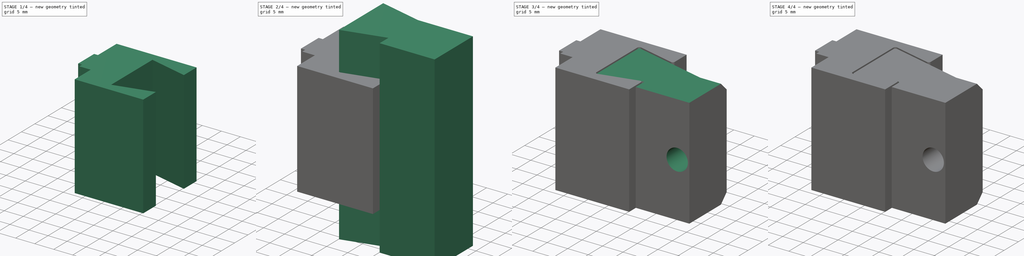
[diagram: build sequence overview — one tinted view per stage of 4, left to right]
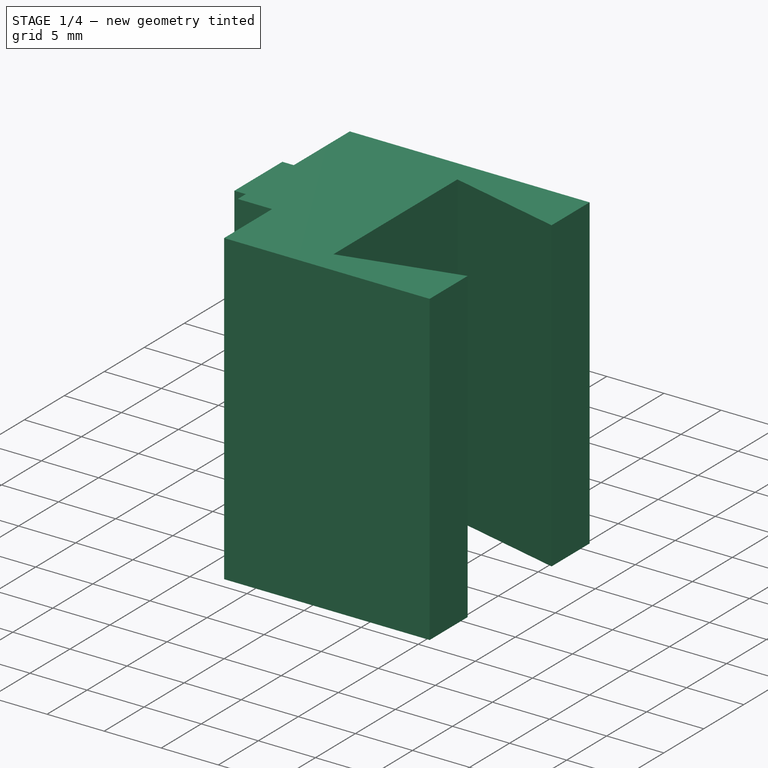
[diagram: stage 1 of 4 — iso view after this stage's code; geometry added in this stage tinted green]
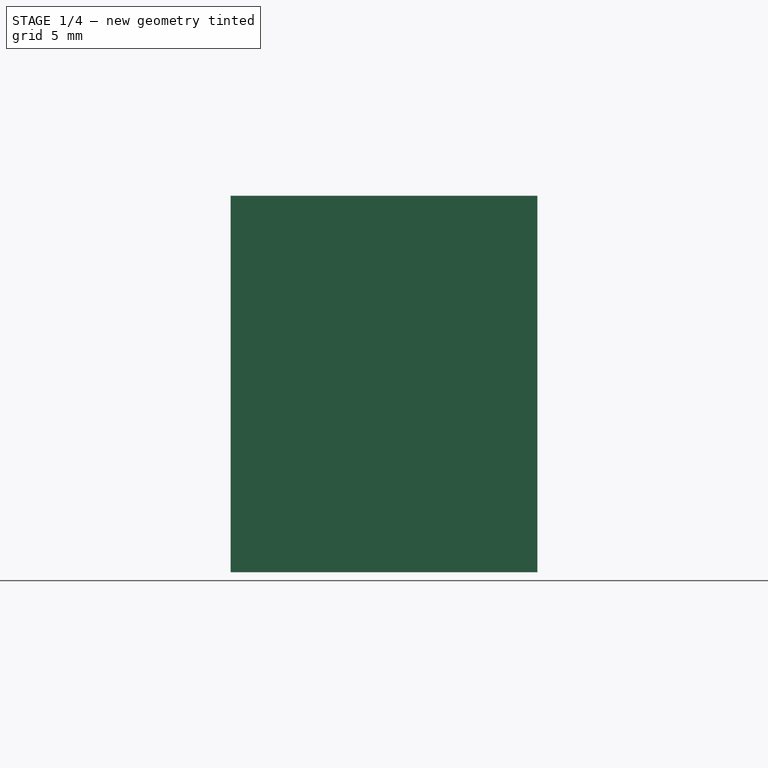
[diagram: stage 1 of 4 — front view after this stage's code; geometry added in this stage tinted green]
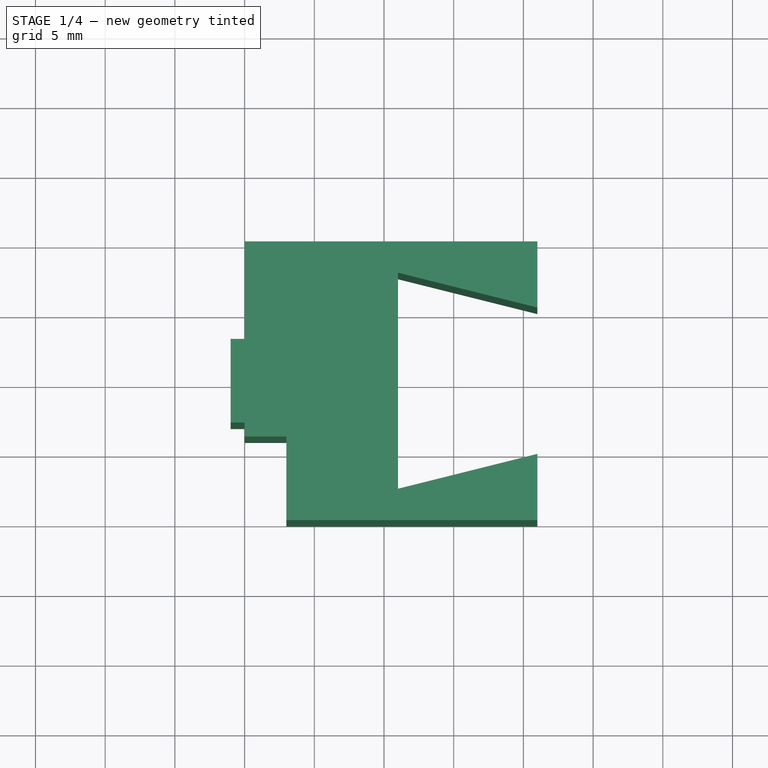
[diagram: stage 1 of 4 — top view after this stage's code; geometry added in this stage tinted green]
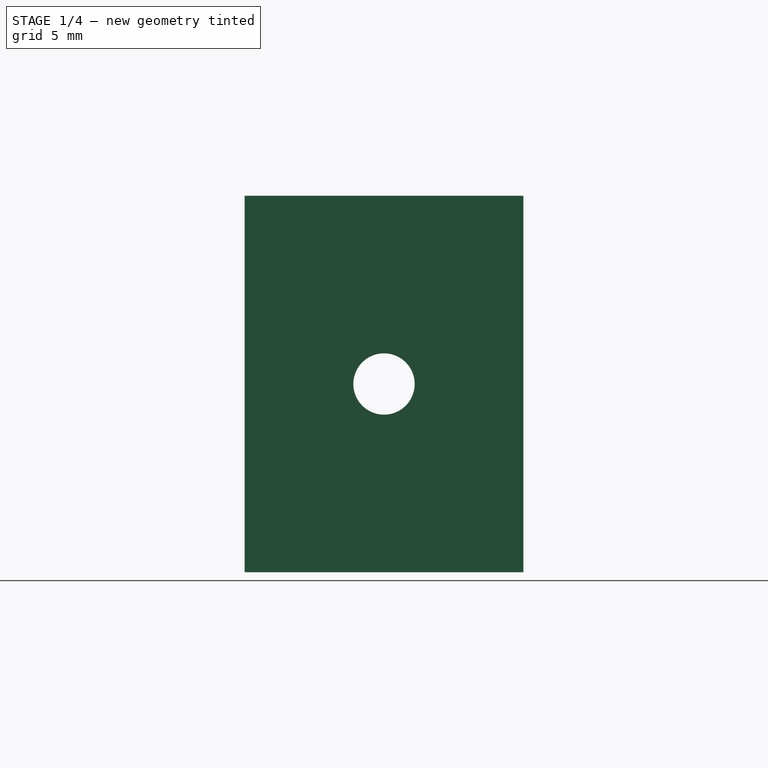
[diagram: stage 1 of 4 — right view after this stage's code; geometry added in this stage tinted green]
FCSTD DOCUMENT  (FreeCAD 0.20R30841 (Git))
Label: filhold
License: Creative Commons Attribution
LicenseURL: http://creativecommons.org/licenses/by/4.0/
objects: Sketcher::SketchObject×7, PartDesign::Pocket×5, PartDesign::Pad×2, PartDesign::Fillet×2, PartDesign::Body×2, Part::Feature×1, Part::Refine×1, App::MeasureDistance×1, PartDesign::Chamfer×1, App::Part×1
note: 41 computed .brp shape members not serialized (recipe doc carries the construction recipe); baked Part::Feature solids carry a one-line shape summary decoded from their .brp

FEATURE [Sketcher::SketchObject] Sketch
  FullyConstrained = true
  MapMode = 5
  Support = -> [XY_Plane]
  TreeRank = 14
  sketch-geometry (14):
    g0: LineSegment StartX=-10 StartY=10 StartZ=0 EndX=11 EndY=10 EndZ=0
    g1: LineSegment StartX=11 StartY=-10 StartZ=0 EndX=-7 EndY=-10 EndZ=0
    g2: LineSegment StartX=-10 StartY=-4 StartZ=0 EndX=-10 EndY=-3 EndZ=0
    g3: LineSegment StartX=11 StartY=5.25 StartZ=0 EndX=1 EndY=7.75 EndZ=0
    g4: LineSegment StartX=1 StartY=7.75 StartZ=0 EndX=1 EndY=-7.75 EndZ=0
    g5: LineSegment StartX=1 StartY=-7.75 StartZ=0 EndX=11 EndY=-5.25 EndZ=0
    g6: LineSegment StartX=11 StartY=10 StartZ=0 EndX=11 EndY=5.25 EndZ=0
    g7: LineSegment StartX=-7 StartY=-10 StartZ=0 EndX=-7 EndY=-4 EndZ=0
    g8: LineSegment StartX=-7 StartY=-4 StartZ=0 EndX=-10 EndY=-4 EndZ=0
    g9: LineSegment StartX=11 StartY=-5.25 StartZ=0 EndX=11 EndY=-10 EndZ=0
    g10: LineSegment StartX=-11 StartY=3 StartZ=0 EndX=-11 EndY=-3 EndZ=0
    g11: LineSegment StartX=-11 StartY=-3 StartZ=0 EndX=-10 EndY=-3 EndZ=0
    g12: LineSegment StartX=-11 StartY=3 StartZ=0 EndX=-10 EndY=3 EndZ=0
    g13: LineSegment StartX=-10 StartY=3 StartZ=0 EndX=-10 EndY=10 EndZ=0
  constraints (39):
    c: Coincident(g13,g0)
    c: Horizontal(g0)
    c: Horizontal(g1)
    c: Vertical(g2)
    c: Coincident(g3,g4)
    c: Coincident(g4,g5)
    c: Symmetric(g3,g4,g-1)
    c: DistanceY(g4,g4) = 15.5
    c: DistanceX(g4,g5) = 10
    c: Vertical(g6)
    c: Coincident(g7,g8)
    c: Horizontal(g8)
    c: Vertical(g7)
    c: DistanceX(g8,g8) = 3
    c: DistanceY(g7,g7) = 6
    c: DistanceY(g1,g0) = 20
    c: Coincident(g1,g7)
    c: Coincident(g8,g2)
    c: Coincident(g0,g6)
    c: Coincident(g1,g9)
    c: Coincident(g6,g3)
    c: DistanceY(g0) = 10
    c: Vertical(g9)
    c: Coincident(g9,g5)
    c: Coincident(g10,g11)
    c: Horizontal(g11)
    c: Coincident(g10,g12)
    c: Horizontal(g12)
    c: DistanceX(g12,g12) = 1
    c: Symmetric(g10,g10,g-1)
    c: DistanceY(g10,g10) = 6
    c: Coincident(g2,g11)
    c: Coincident(g13,g12)
    c: DistanceY(g5,g3) = 10.5
    c: Symmetric(g3,g5,g-1)
    c: Vertical(g13)
    c: DistanceX(g0) = -10
    c: DistanceX(g0,g3) = 11
    c: Equal(g11,g12)
FEATURE [PartDesign::Pad] Pad
  AddSubType = 0
  AlongSketchNormal = false
  CheckUpToFaceLimits = true
  ClaimChildren = false
  Direction = (0,0,1)
  Fit = 0
  FitJoin = 0
  InnerFit = 0
  InnerFitJoin = 0
  InnerTaperAngle = 0
  InnerTaperAngleRev = 0
  Length = 27
  Length2 = 100
  Linearize = true
  Midplane = true
  NewSolid = false
  Profile = -> Sketch
  Suppress = false
  TreeRank = 15
  Type = 0
  _ProfileBasedVersion = 1
FEATURE [Part::Feature] spool_holder001_solid  label="spool_holder001 (Solid)"
  TreeRank = 18
  shape: bbox 13 x 98 x 45.4 mm, 8772 faces (baked)
FEATURE [Part::Refine] Refined  label="spool_holder001 (Solid)001"
  Placement = pos=(20.9,2.2,-1.8) rot=(0,0,1;0rad)
  Source = -> spool_holder001_solid
  TreeRank = 19
FEATURE [Sketcher::SketchObject] Sketch001
  FullyConstrained = true
  MapMode = 5
  Placement = pos=(1,0,0) rot=(0.57735,0.57735,0.57735;2.0944rad)
  Support = -> [Pad]
  TreeRank = 33
  sketch-geometry (1):
    g0: Circle CenterX=0 CenterY=0 CenterZ=0 NormalX=0 NormalY=0 NormalZ=1 AngleXU=0 Radius=2.2
  constraints (2):
    c: Radius(g0) = 2.2
    c: Coincident(g0,g-1)
FEATURE [App::MeasureDistance] Distance  label="Distance: 5.32 mm"
  Distance = 5.31572
  P1 = (0.340871,3.2,4.42933)
  P2 = (0.314685,3.2,-0.886328)
  TreeRank = 21
FEATURE [PartDesign::Pocket] Pocket
  AddSubType = 1
  BaseFeature = -> Pad
  CheckUpToFaceLimits = true
  ClaimChildren = false
  Fit = 0
  FitJoin = 0
  InnerFit = 0
  InnerFitJoin = 0
  InnerTaperAngle = 0
  InnerTaperAngleRev = 0
  Length = 5
  Length2 = 100
  Linearize = true
  NewSolid = false
  Profile = -> Sketch001
  Suppress = false
  TreeRank = 34
  Type = 1
  _ProfileBasedVersion = 1
  _Version = 1
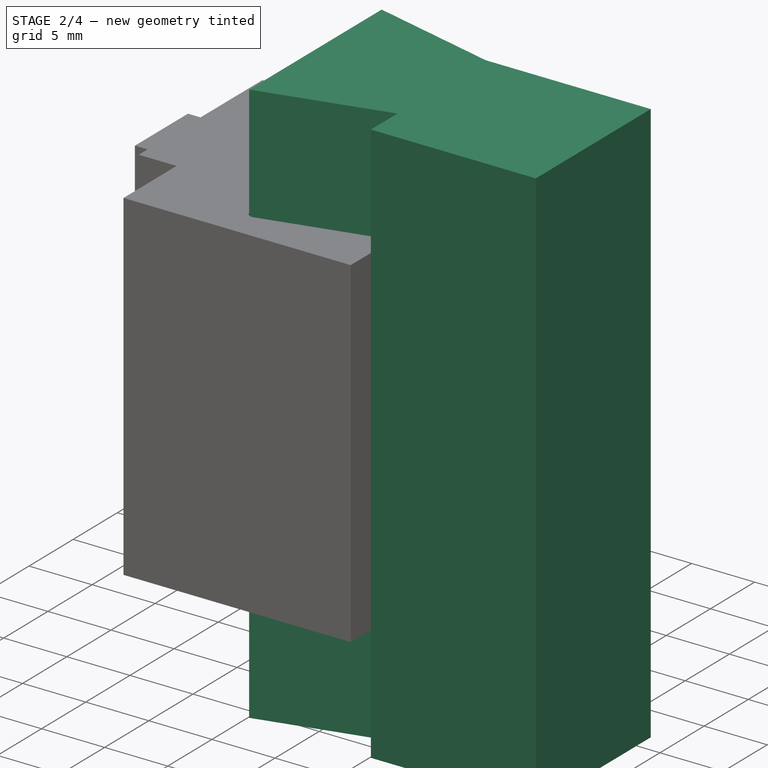
[diagram: stage 2 of 4 — iso view after this stage's code; geometry added in this stage tinted green]
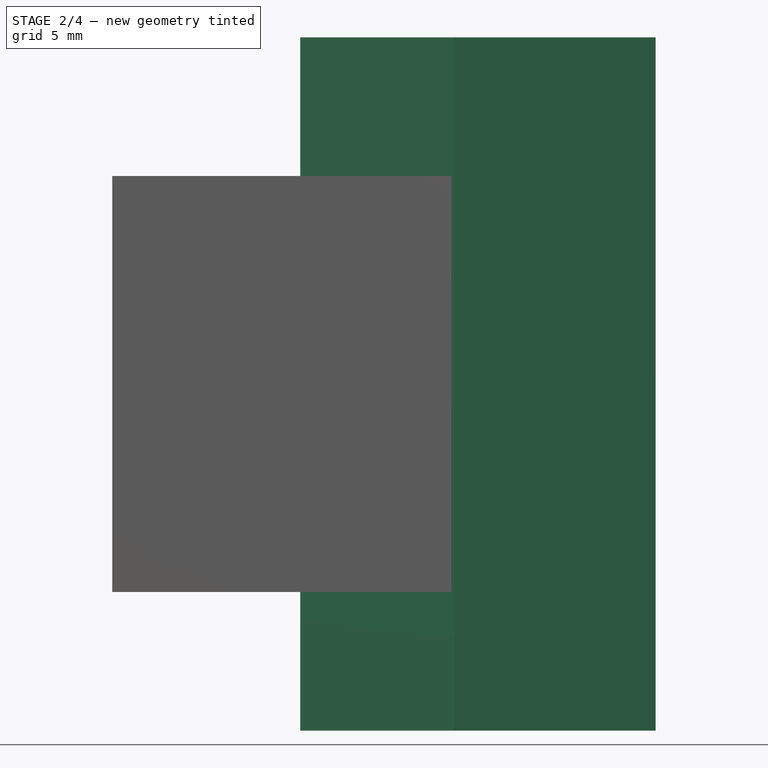
[diagram: stage 2 of 4 — front view after this stage's code; geometry added in this stage tinted green]
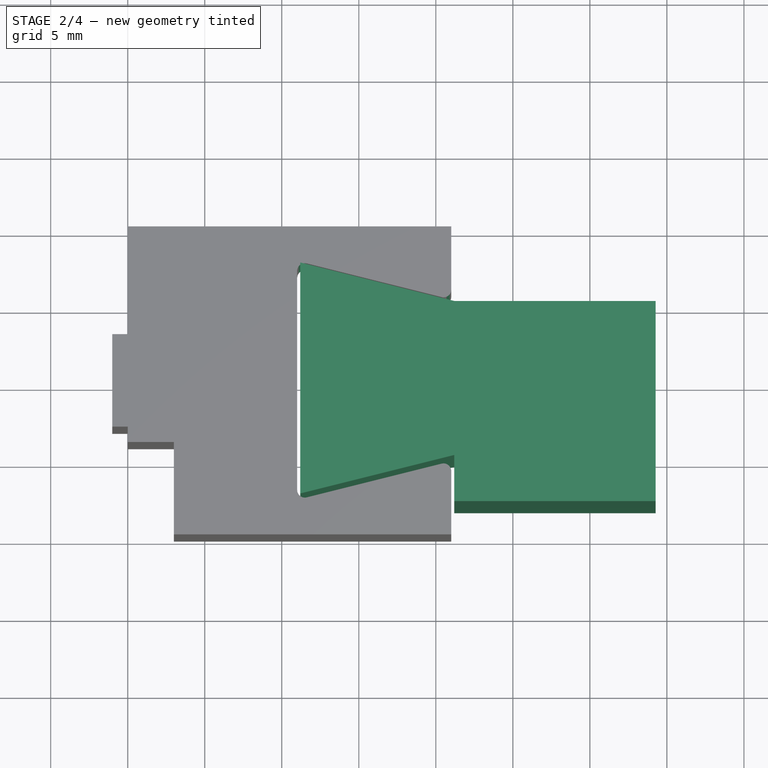
[diagram: stage 2 of 4 — top view after this stage's code; geometry added in this stage tinted green]
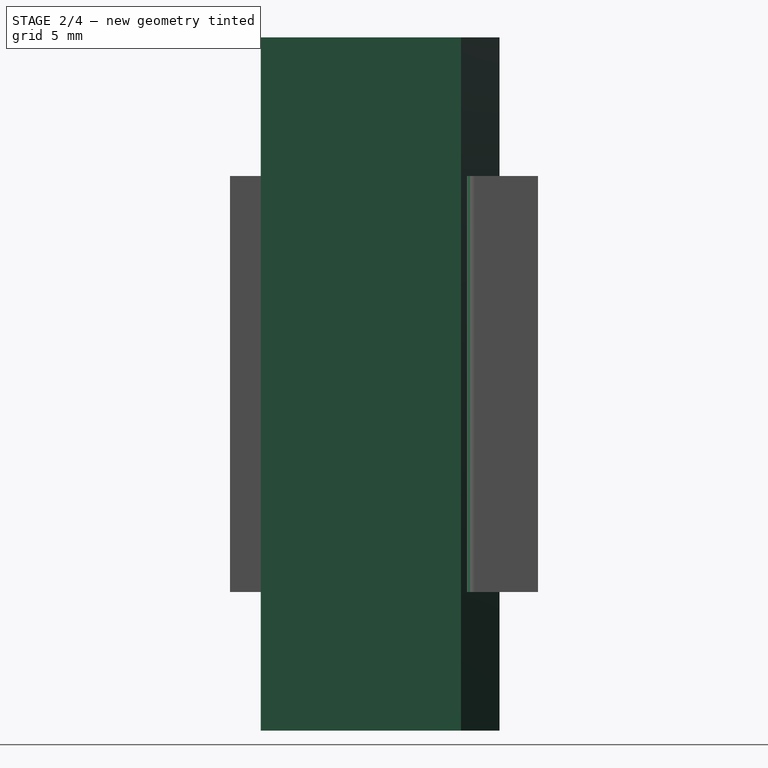
[diagram: stage 2 of 4 — right view after this stage's code; geometry added in this stage tinted green]
FEATURE [Sketcher::SketchObject] Sketch002
  FullyConstrained = false
  MapMode = 5
  Placement = pos=(0,0,0) rot=(1,0,0;1.5708rad)
  Support = -> [XZ_Plane001]
  TreeRank = 45
  sketch-geometry (4):
    g0: LineSegment StartX=24.2727 StartY=22.5 StartZ=0 EndX=0.156854 EndY=22.5 EndZ=0
    g1: LineSegment StartX=0.156854 StartY=22.5 StartZ=0 EndX=0.156854 EndY=-22.5 EndZ=0
    g2: LineSegment StartX=0.156854 StartY=-22.5 StartZ=0 EndX=24.2727 EndY=-22.5 EndZ=0
    g3: LineSegment StartX=24.2727 StartY=-22.5 StartZ=0 EndX=24.2727 EndY=22.5 EndZ=0
  constraints (9):
    c: Coincident(g0,g1)
    c: Coincident(g1,g2)
    c: Coincident(g2,g3)
    c: Coincident(g3,g0)
    c: Horizontal(g0)
    c: Horizontal(g2)
    c: Vertical(g1)
    c: Symmetric(g0,g2,g-1)
    c: DistanceY(g3,g3) = 45
FEATURE [PartDesign::Pad] Pad001
  AddSubType = 0
  AlongSketchNormal = false
  CheckUpToFaceLimits = true
  ClaimChildren = false
  Direction = (0,-1,2e-16)
  Fit = 0
  FitJoin = 0
  InnerFit = 0
  InnerFitJoin = 0
  InnerTaperAngle = 0
  InnerTaperAngleRev = 0
  Length = 16
  Length2 = 100
  Linearize = true
  Midplane = true
  NewSolid = false
  Placement = pos=(0,0,0) rot=(1,0,0;1.5708rad)
  Profile = -> Sketch002
  Suppress = false
  TreeRank = 46
  Type = 0
  _ProfileBasedVersion = 1
FEATURE [Sketcher::SketchObject] Sketch003
  FullyConstrained = false
  MapMode = 5
  Placement = pos=(0,9.9e-15,22.5) rot=(0,0,1;3.14159rad)
  Support = -> [Pad001]
  TreeRank = 47
  sketch-geometry (9):
    g0: LineSegment StartX=-1.2 StartY=7.5 StartZ=0 EndX=-1.2 EndY=-7.5 EndZ=0
    g1: LineSegment StartX=-1.2 StartY=7.5 StartZ=0 EndX=-11.2 EndY=5 EndZ=0
    g2: LineSegment StartX=-1.2 StartY=-7.5 StartZ=0 EndX=-11.2 EndY=-5 EndZ=0
    g3: LineSegment StartX=-11.2 StartY=-5 StartZ=0 EndX=-26.0981 EndY=-5 EndZ=0
    g4: LineSegment StartX=-11.2 StartY=5 StartZ=0 EndX=-11.2 EndY=8.41931 EndZ=0
    g5: LineSegment StartX=-11.2 StartY=8.41931 StartZ=0 EndX=0.566555 EndY=8.41931 EndZ=0
    g6: LineSegment StartX=-26.0981 StartY=-5 StartZ=0 EndX=-26.0981 EndY=-10.3335 EndZ=0
    g7: LineSegment StartX=-26.0981 StartY=-10.3335 StartZ=0 EndX=0.566555 EndY=-10.3335 EndZ=0
    g8: LineSegment StartX=0.566555 StartY=-10.3335 StartZ=0 EndX=0.566555 EndY=8.41931 EndZ=0
  constraints (19):
    c: Symmetric(g0,g0,g-1)
    c: DistanceX(g0,g-1) = 1.2
    c: DistanceY(g0,g0) = 15
    c: Coincident(g1,g0)
    c: Coincident(g2,g0)
    c: Symmetric(g1,g2,g-1)
    c: DistanceY(g2,g1) = 10
    c: DistanceX(g1,g-1) = 11.2
    c: Coincident(g3,g2)
    c: Horizontal(g3)
    c: Coincident(g4,g1)
    c: Vertical(g4)
    c: Horizontal(g5)
    c: Coincident(g6,g3)
    c: Vertical(g6)
    c: Horizontal(g7)
    c: Coincident(g8,g7)
    c: Coincident(g8,g5)
    c: Vertical(g8)
FEATURE [PartDesign::Pocket] Pocket001
  AddSubType = 1
  BaseFeature = -> Pad001
  CheckUpToFaceLimits = true
  ClaimChildren = false
  Fit = 0
  FitJoin = 0
  InnerFit = 0
  InnerFitJoin = 0
  InnerTaperAngle = 0
  InnerTaperAngleRev = 0
  Length = 5
  Length2 = 100
  Linearize = true
  NewSolid = false
  Placement = pos=(0,0,0) rot=(1,0,0;1.5708rad)
  Profile = -> Sketch003
  Suppress = false
  TreeRank = 48
  Type = 1
  _ProfileBasedVersion = 1
  _Version = 1
FEATURE [PartDesign::Body] Body001
  AutoGroupSolids = false
  ExportMode = 0
  Group = -> [Sketch002,Pad001,Sketch003,Pocket001,Sketch004,Pocket002,Sketch005,Pocket003,Chamfer,Sketch007,Pocket004,Fillet]
  Origin = -> Origin002
  Tip = -> Fillet
  TreeRank = 44
  _ExportChildren = -> [Pad001,Pocket001,Pocket002,Pocket003,Chamfer,Pocket004,Fillet]
  _GroupVersion = 1
FEATURE [PartDesign::Fillet] Fillet001
  AddSubType = 0
  Base = -> Pocket [Edge39,Edge40,Edge41,Edge38]
  BaseFeature = -> Pocket
  NewSolid = false
  Radius = 0.5
  SupportTransform = false
  Suppress = false
  TreeRank = 59
FEATURE [PartDesign::Body] Body
  AutoGroupSolids = false
  ExportMode = 0
  Group = -> [Sketch,Pad,Sketch001,Pocket,Fillet001]
  Origin = -> Origin001
  Tip = -> Fillet001
  TreeRank = 13
  _ExportChildren = -> [Pad,Pocket,Fillet001]
  _GroupVersion = 1
FEATURE [App::Part] Part
  ExportMode = 1
  Group = -> [Body,Body001]
  Origin = -> Origin
  TreeRank = 3
  _ExportChildren = -> [Body,Body001]
  _GroupVersion = 1
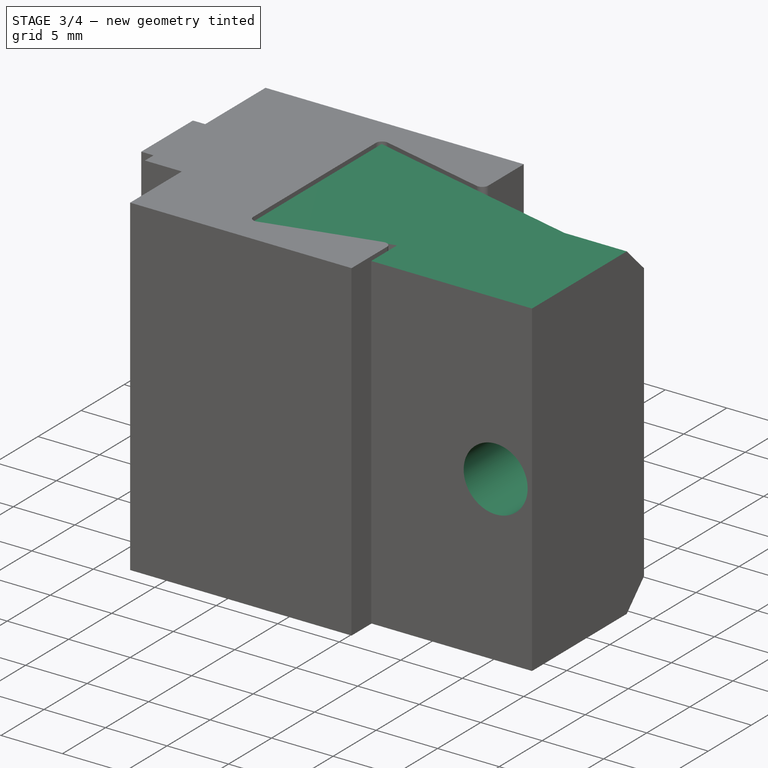
[diagram: stage 3 of 4 — iso view after this stage's code; geometry added in this stage tinted green]
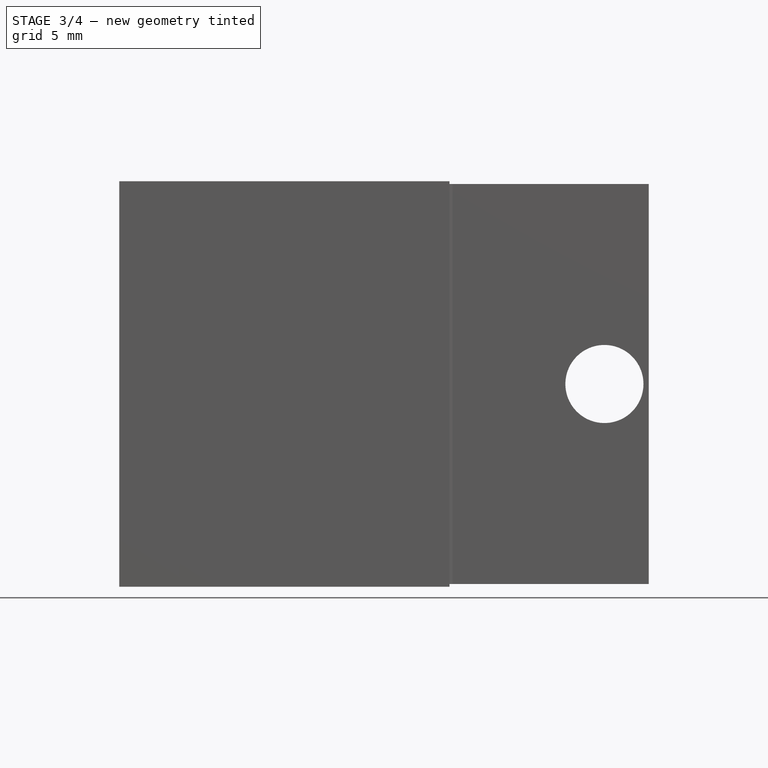
[diagram: stage 3 of 4 — front view after this stage's code; geometry added in this stage tinted green]
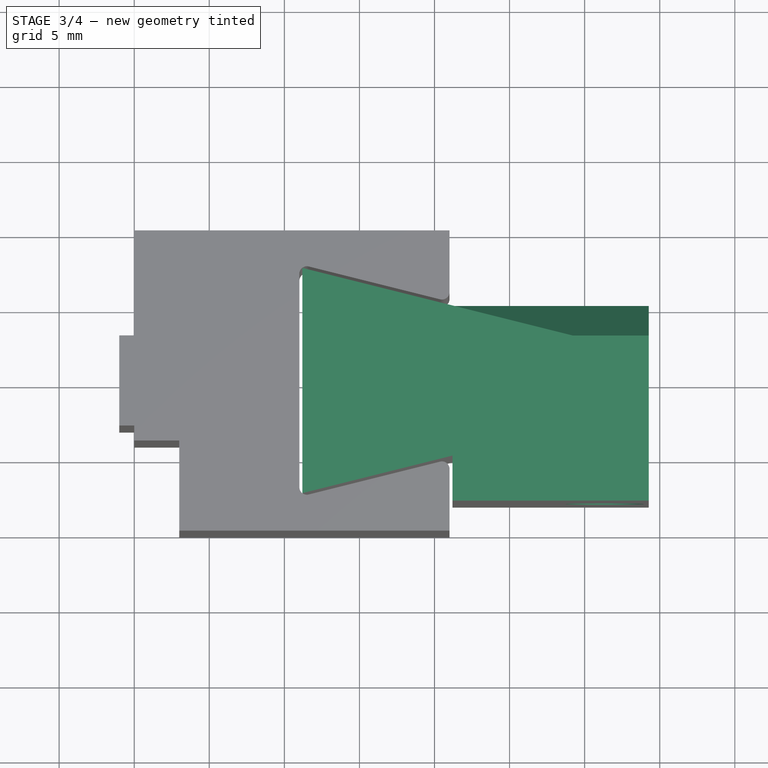
[diagram: stage 3 of 4 — top view after this stage's code; geometry added in this stage tinted green]
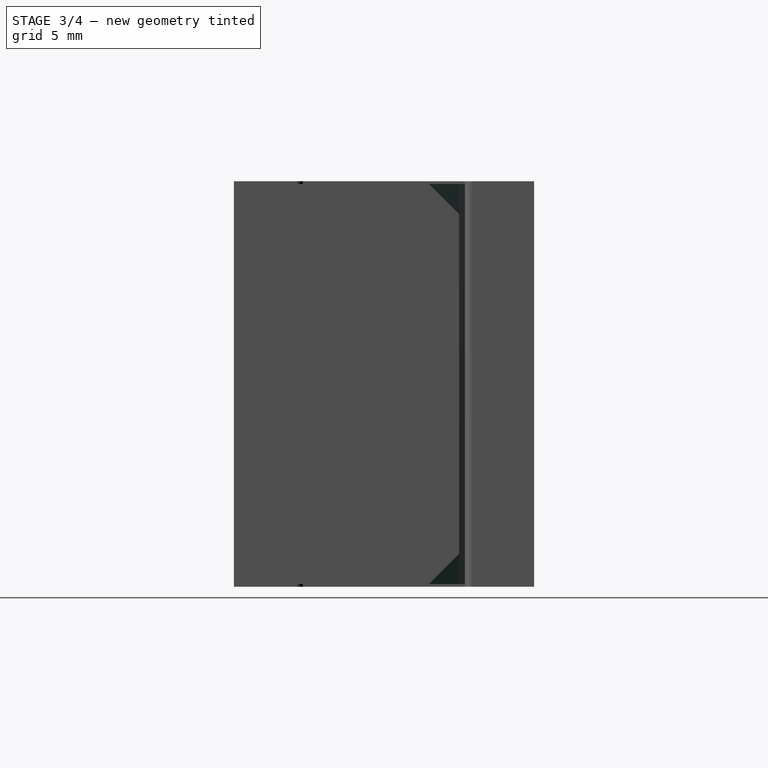
[diagram: stage 3 of 4 — right view after this stage's code; geometry added in this stage tinted green]
FEATURE [Sketcher::SketchObject] Sketch004
  FullyConstrained = false
  MapMode = 5
  Placement = pos=(24.2727,0,0) rot=(0.707107,0,0.707107;3.14159rad)
  Support = -> [Pocket001]
  TreeRank = 49
  sketch-geometry (8):
    g0: LineSegment StartX=-22.7916 StartY=8.76127 StartZ=0 EndX=-13.3183 EndY=8.76127 EndZ=0
    g1: LineSegment StartX=-13.3183 StartY=8.76127 StartZ=0 EndX=-13.3183 EndY=-17.4053 EndZ=0
    g2: LineSegment StartX=-13.3183 StartY=-17.4053 StartZ=0 EndX=-22.7916 EndY=-17.4053 EndZ=0
    g3: LineSegment StartX=-22.7916 StartY=-17.4053 StartZ=0 EndX=-22.7916 EndY=8.76127 EndZ=0
    g4: LineSegment StartX=13.3183 StartY=8.76127 StartZ=0 EndX=23.8065 EndY=8.76127 EndZ=0
    g5: LineSegment StartX=23.8065 StartY=8.76127 StartZ=0 EndX=23.8065 EndY=-18.5831 EndZ=0
    g6: LineSegment StartX=23.8065 StartY=-18.5831 StartZ=0 EndX=13.3183 EndY=-18.5831 EndZ=0
    g7: LineSegment StartX=13.3183 StartY=-18.5831 StartZ=0 EndX=13.3183 EndY=8.76127 EndZ=0
  constraints (17):
    c: Coincident(g0,g1)
    c: Coincident(g1,g2)
    c: Coincident(g2,g3)
    c: Coincident(g3,g0)
    c: Horizontal(g0)
    c: Horizontal(g2)
    c: Vertical(g1)
    c: Vertical(g3)
    c: Coincident(g4,g5)
    c: Coincident(g5,g6)
    c: Coincident(g6,g7)
    c: Coincident(g7,g4)
    c: Horizontal(g4)
    c: Horizontal(g6)
    c: Vertical(g5)
    c: Vertical(g7)
    c: Symmetric(g0,g4,g-2)
FEATURE [PartDesign::Pocket] Pocket002
  AddSubType = 1
  BaseFeature = -> Pocket001
  CheckUpToFaceLimits = true
  ClaimChildren = false
  Fit = 0
  FitJoin = 0
  InnerFit = 0
  InnerFitJoin = 0
  InnerTaperAngle = 0
  InnerTaperAngleRev = 0
  Length = 5
  Length2 = 100
  Linearize = true
  NewSolid = false
  Placement = pos=(0,0,0) rot=(1,0,0;1.5708rad)
  Profile = -> Sketch004
  Suppress = false
  TreeRank = 50
  Type = 1
  _ProfileBasedVersion = 1
  _Version = 1
FEATURE [Sketcher::SketchObject] Sketch005
  FullyConstrained = false
  MapMode = 5
  Placement = pos=(0,-8,1.8e-15) rot=(1,0,0;1.5708rad)
  Support = -> [Pocket002]
  TreeRank = 51
  sketch-geometry (1):
    g0: Circle CenterX=21.3165 CenterY=0 CenterZ=0 NormalX=0 NormalY=0 NormalZ=1 AngleXU=0 Radius=2.6
  constraints (2):
    c: PointOnObject(g0,g-1)
    c: Radius(g0) = 2.6
FEATURE [PartDesign::Pocket] Pocket003
  AddSubType = 1
  BaseFeature = -> Pocket002
  CheckUpToFaceLimits = true
  ClaimChildren = false
  Fit = 0
  FitJoin = 0
  InnerFit = 0
  InnerFitJoin = 0
  InnerTaperAngle = 0
  InnerTaperAngleRev = 0
  Length = 5
  Length2 = 100
  Linearize = true
  NewSolid = false
  Placement = pos=(0,0,0) rot=(1,0,0;1.5708rad)
  Profile = -> Sketch005
  Suppress = false
  TreeRank = 52
  Type = 1
  _ProfileBasedVersion = 1
  _Version = 1
FEATURE [PartDesign::Chamfer] Chamfer
  AddSubType = 0
  Angle = 45
  Base = -> Pocket003 [Edge4,Edge1]
  BaseFeature = -> Pocket003
  ChamferType = 0
  FlipDirection = false
  NewSolid = false
  Placement = pos=(0,0,0) rot=(1,0,0;1.5708rad)
  Size = 2
  Size2 = 1
  SupportTransform = false
  Suppress = false
  TreeRank = 53
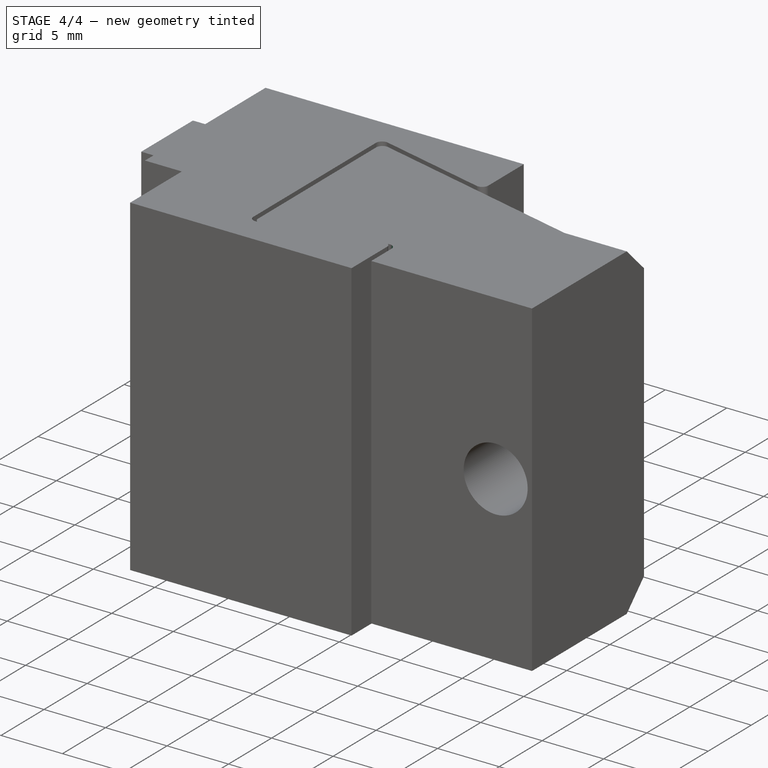
[diagram: stage 4 of 4 — iso view after this stage's code; geometry added in this stage tinted green]
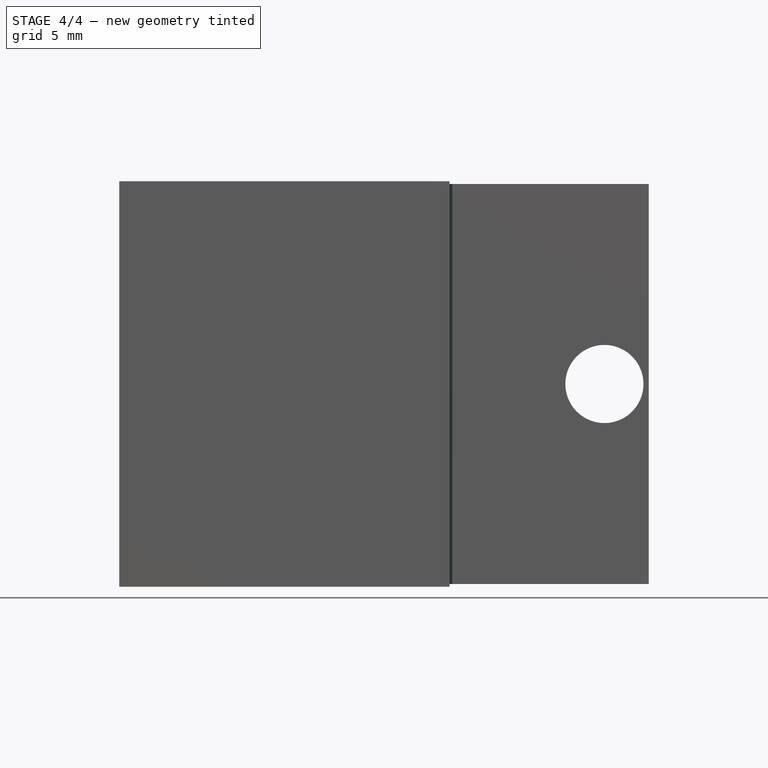
[diagram: stage 4 of 4 — front view after this stage's code; geometry added in this stage tinted green]
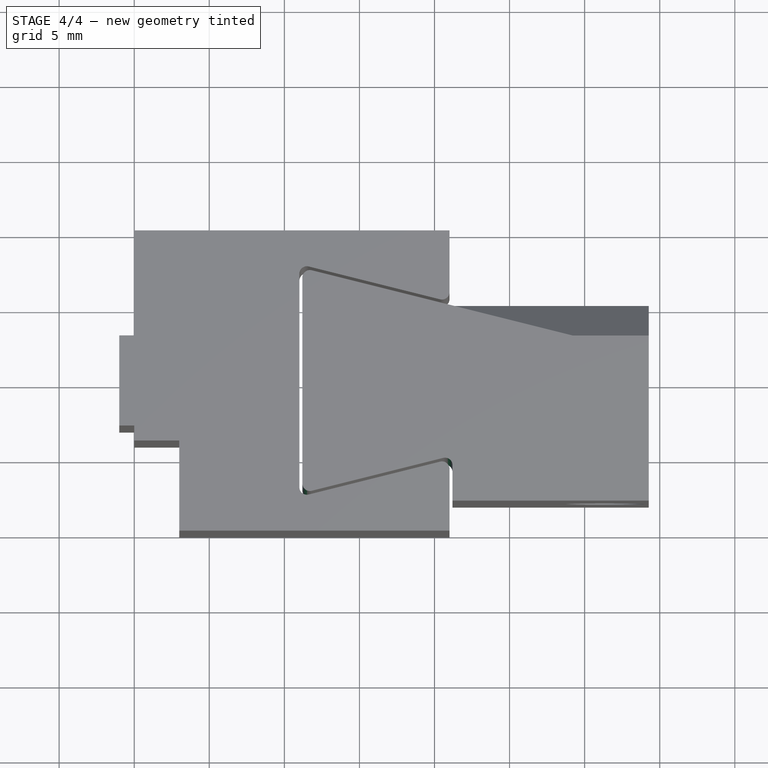
[diagram: stage 4 of 4 — top view after this stage's code; geometry added in this stage tinted green]
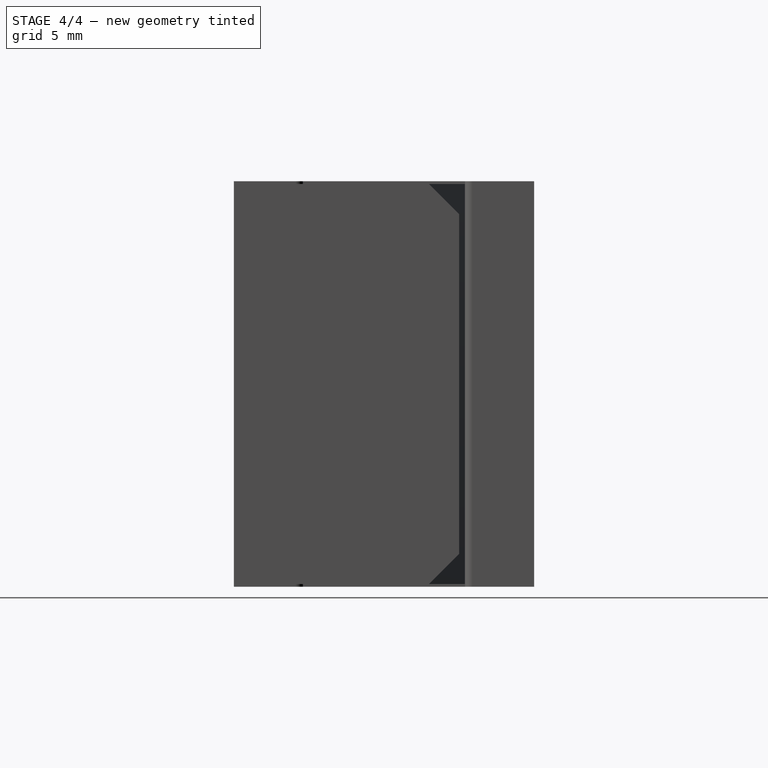
[diagram: stage 4 of 4 — right view after this stage's code; geometry added in this stage tinted green]
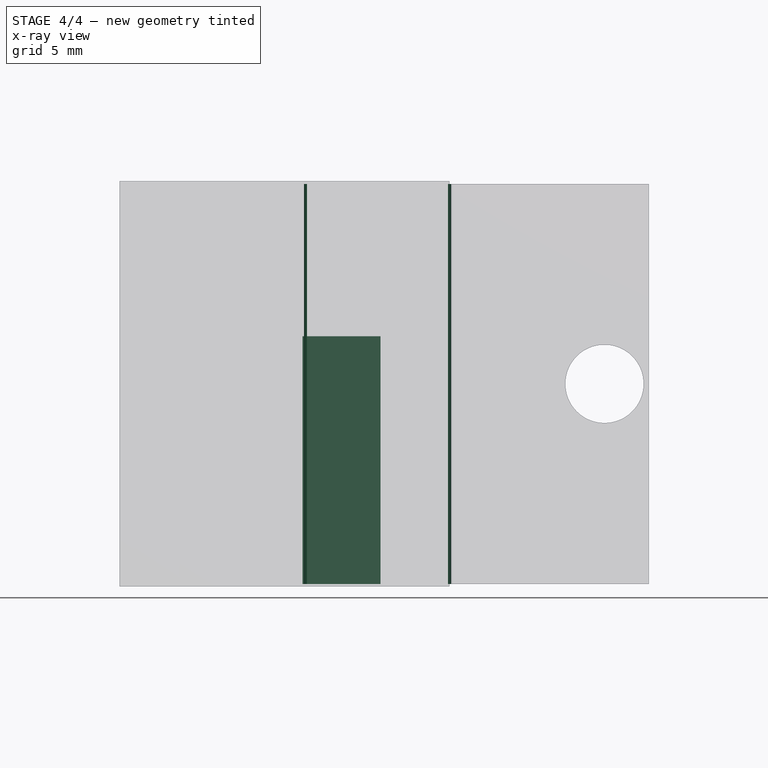
[diagram: stage 4 of 4 — x-ray composite at the front view; earlier geometry ghosted, this stage's added geometry solid]
FEATURE [Sketcher::SketchObject] Sketch007
  ExternalGeometry = -> [Chamfer]
  FullyConstrained = true
  MapMode = 5
  Placement = pos=(-3e-15,3e-15,-13.3183) rot=(1,0,0;3.14159rad)
  Support = -> [Chamfer]
  TreeRank = 56
  sketch-geometry (4):
    g0: LineSegment StartX=1.2 StartY=3.5 StartZ=0 EndX=6.4 EndY=3.5 EndZ=0
    g1: LineSegment StartX=6.4 StartY=3.5 StartZ=0 EndX=6.4 EndY=-3.5 EndZ=0
    g2: LineSegment StartX=6.4 StartY=-3.5 StartZ=0 EndX=1.2 EndY=-3.5 EndZ=0
    g3: LineSegment StartX=1.2 StartY=-3.5 StartZ=0 EndX=1.2 EndY=3.5 EndZ=0
  constraints (11):
    c: Coincident(g0,g1)
    c: Coincident(g1,g2)
    c: Coincident(g2,g3)
    c: Coincident(g3,g0)
    c: Horizontal(g0)
    c: Horizontal(g2)
    c: Vertical(g3)
    c: PointOnObject(g0,g-3)
    c: Symmetric(g0,g1,g-1)
    c: DistanceX(g0,g0) = 5.2
    c: DistanceY(g1,g1) = 7
FEATURE [PartDesign::Pocket] Pocket004
  AddSubType = 1
  BaseFeature = -> Chamfer
  CheckUpToFaceLimits = true
  ClaimChildren = false
  Fit = 0
  FitJoin = 0
  InnerFit = 0
  InnerFitJoin = 0
  InnerTaperAngle = 0
  InnerTaperAngleRev = 0
  Length = 16.5
  Length2 = 100
  Linearize = true
  NewSolid = false
  Placement = pos=(0,0,0) rot=(1,0,0;1.5708rad)
  Profile = -> Sketch007
  Suppress = false
  TreeRank = 57
  Type = 0
  _ProfileBasedVersion = 1
  _Version = 1
FEATURE [PartDesign::Fillet] Fillet
  AddSubType = 0
  Base = -> Pocket004 [Edge38,Edge19,Edge44]
  BaseFeature = -> Pocket004
  NewSolid = false
  Placement = pos=(0,0,0) rot=(1,0,0;1.5708rad)
  Radius = 0.5
  SupportTransform = false
  Suppress = false
  TreeRank = 58
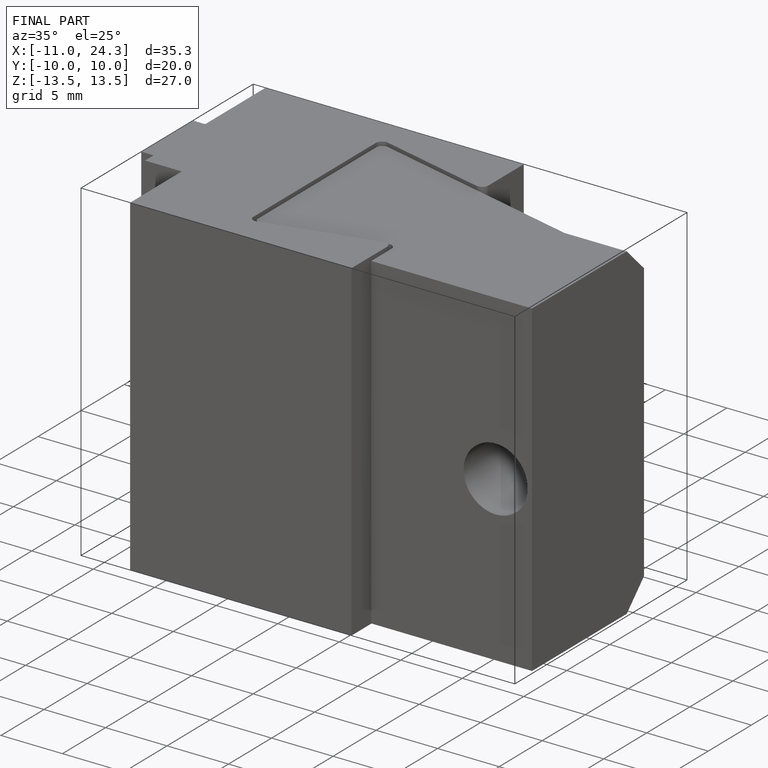
[diagram: finished part — iso view with bounding-box wireframe]
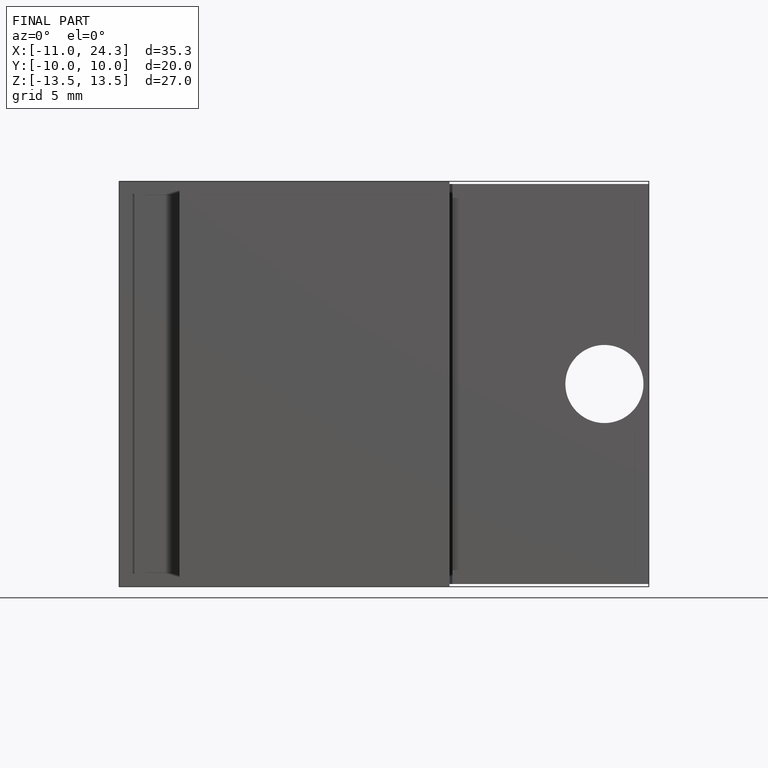
[diagram: finished part — front view with bounding-box wireframe]
